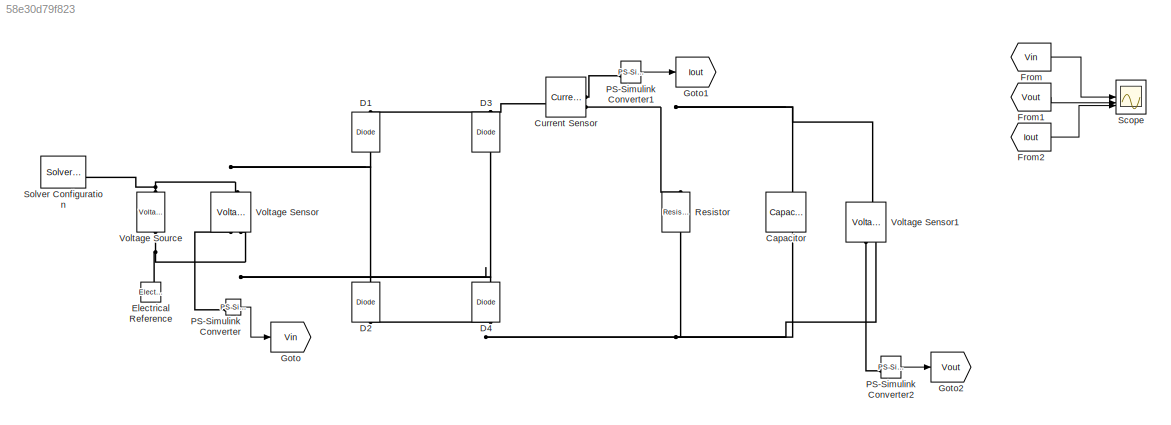
MODEL slx_58e30d79f823
KIND model
CONFIG AbsTol = auto
CONFIG EnableMultiTasking = off
CONFIG FixedStep = auto
CONFIG MaxStep = auto
CONFIG MinStep = auto
CONFIG RelTol = 1e-3
CONFIG SampleTimeConstraint = Unconstrained
CONFIG SolverName = VariableStepAuto
CONFIG StartTime = 0.0
CONFIG StopTime = 0.2
BLOCK [Reference] Capacitor  REF=fl_lib/Electrical/Electrical Elements/Capacitor
  NameLocation = left
  SourceBlock = fl_lib/Electrical/Electrical Elements/Capacitor
  SourceType = Capacitor
BLOCK [Reference] Current Sensor  REF=fl_lib/Electrical/Electrical Sensors/Current Sensor
  SourceBlock = fl_lib/Electrical/Electrical Sensors/Current Sensor
  SourceType = Current Sensor
BLOCK [Reference] D1  REF=fl_lib/Electrical/Electrical Elements/Diode
  NameLocation = right
  SourceBlock = fl_lib/Electrical/Electrical Elements/Diode
  SourceType = Diode
BLOCK [Reference] D2  REF=fl_lib/Electrical/Electrical Elements/Diode
  NameLocation = right
  SourceBlock = fl_lib/Electrical/Electrical Elements/Diode
  SourceType = Diode
BLOCK [Reference] D3  REF=fl_lib/Electrical/Electrical Elements/Diode
  NameLocation = right
  SourceBlock = fl_lib/Electrical/Electrical Elements/Diode
  SourceType = Diode
BLOCK [Reference] D4  REF=fl_lib/Electrical/Electrical Elements/Diode
  NameLocation = right
  SourceBlock = fl_lib/Electrical/Electrical Elements/Diode
  SourceType = Diode
BLOCK [Reference] Electrical Reference  REF=fl_lib/Electrical/Electrical Elements/Electrical Reference
  NameLocation = right
  SourceBlock = fl_lib/Electrical/Electrical Elements/Electrical Reference
  SourceType = Electrical Reference
BLOCK [From] From
  GotoTag = Vin
BLOCK [From] From1
  GotoTag = Vout
BLOCK [From] From2
  GotoTag = Iout
BLOCK [Goto] Goto
  GotoTag = Vin
BLOCK [Goto] Goto1
  GotoTag = Iout
BLOCK [Goto] Goto2
  GotoTag = Vout
BLOCK [Reference] PS-Simulink Converter  REF=nesl_utility/PS-Simulink
Converter
  SourceBlock = nesl_utility/PS-Simulink\nConverter
  SourceType = PS-Simulink\nConverter
BLOCK [Reference] PS-Simulink Converter1  REF=nesl_utility/PS-Simulink
Converter
  SourceBlock = nesl_utility/PS-Simulink\nConverter
  SourceType = PS-Simulink\nConverter
BLOCK [Reference] PS-Simulink Converter2  REF=nesl_utility/PS-Simulink
Converter
  SourceBlock = nesl_utility/PS-Simulink\nConverter
  SourceType = PS-Simulink\nConverter
BLOCK [Reference] Resistor  REF=fl_lib/Electrical/Electrical Elements/Resistor
  NameLocation = left
  SourceBlock = fl_lib/Electrical/Electrical Elements/Resistor
  SourceType = Resistor
BLOCK [Scope] Scope
  Floating = off
  NumInputPorts = 3
  ScopeSpecificationString = Simulink.scopes.TimeScopeBlockCfg('CurrentConfiguration', extmgr.ConfigurationSet(extmgr.Configuration('Core','General UI',true),extmgr.Configuration('Core','Source UI',true),extmgr.Configuration('Sources','WiredSimulink',true),extmgr.Configuration('Visuals','Time Domain',true,'SerializedDisplays',{struct('MinYLimReal','-131.41298','MaxYLimReal','182.73067','YLabelReal','','MinYLimMag',' 0.00000',...<+1485ch>
BLOCK [Reference] Solver Configuration  REF=nesl_utility/Solver
Configuration
  SourceBlock = nesl_utility/Solver\nConfiguration
  SourceType = Solver\nConfiguration
BLOCK [Reference] Voltage Sensor  REF=fl_lib/Electrical/Electrical Sensors/Voltage Sensor
  NameLocation = right
  SourceBlock = fl_lib/Electrical/Electrical Sensors/Voltage Sensor
  SourceType = Voltage Sensor
BLOCK [Reference] Voltage Sensor1  REF=fl_lib/Electrical/Electrical Sensors/Voltage Sensor
  NameLocation = right
  SourceBlock = fl_lib/Electrical/Electrical Sensors/Voltage Sensor
  SourceType = Voltage Sensor
BLOCK [Reference] Voltage Source  REF=ee_lib/Sources/Voltage Source
  NameLocation = right
  SourceBlock = ee_lib/Sources/Voltage Source
  SourceType = Voltage Source
LINE From1:1 -> Scope:2
LINE From2:1 -> Scope:3
LINE From:1 -> Scope:1
LINE PS-Simulink Converter1:1 -> Goto1:1
LINE PS-Simulink Converter2:1 -> Goto2:1
LINE PS-Simulink Converter:1 -> Goto:1
PNET net1: Capacitor:LConn1 -- Current Sensor:RConn2 -- Resistor:LConn1 -- Voltage Sensor1:LConn1
PNET net2: Capacitor:RConn1 -- D2:LConn1 -- D4:LConn1 -- Resistor:RConn1 -- Voltage Sensor1:RConn2
PNET net3: Current Sensor:LConn1 -- D1:RConn1 -- D3:RConn1
PLINE Current Sensor:RConn1 -- PS-Simulink Converter1:LConn1
PNET net4: D1:LConn1 -- D2:RConn1 -- Solver Configuration:RConn1 -- Voltage Sensor:LConn1 -- Voltage Source:LConn1
PNET net5: D3:LConn1 -- D4:RConn1 -- Electrical Reference:LConn1 -- Voltage Sensor:RConn2 -- Voltage Source:RConn1
PLINE PS-Simulink Converter2:LConn1 -- Voltage Sensor1:RConn1
PLINE PS-Simulink Converter:LConn1 -- Voltage Sensor:RConn1
note: PNET lines group multi-terminal physical nets as a canonical sorted terminal list (undirected conserving connections); 2-terminal nets keep the pairwise PLINE form
